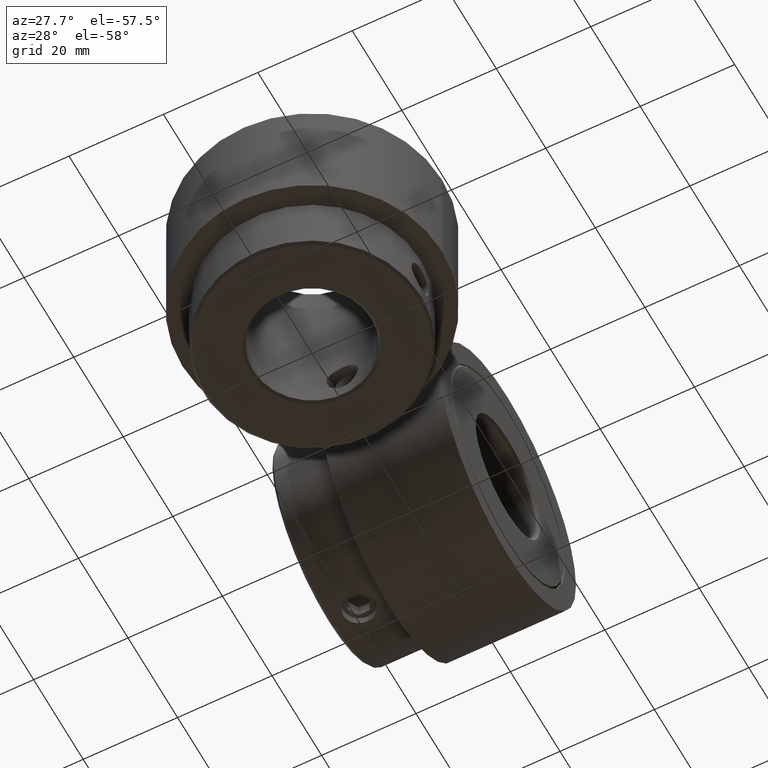
[diagram: clean part render]
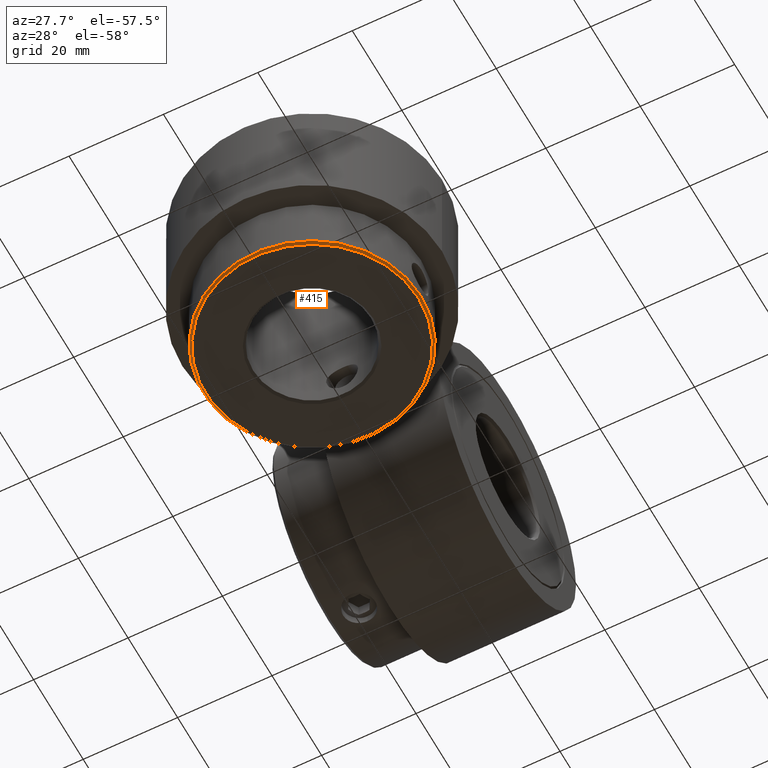
[diagram: same view with one face highlighted and labeled with its STEP entity id]
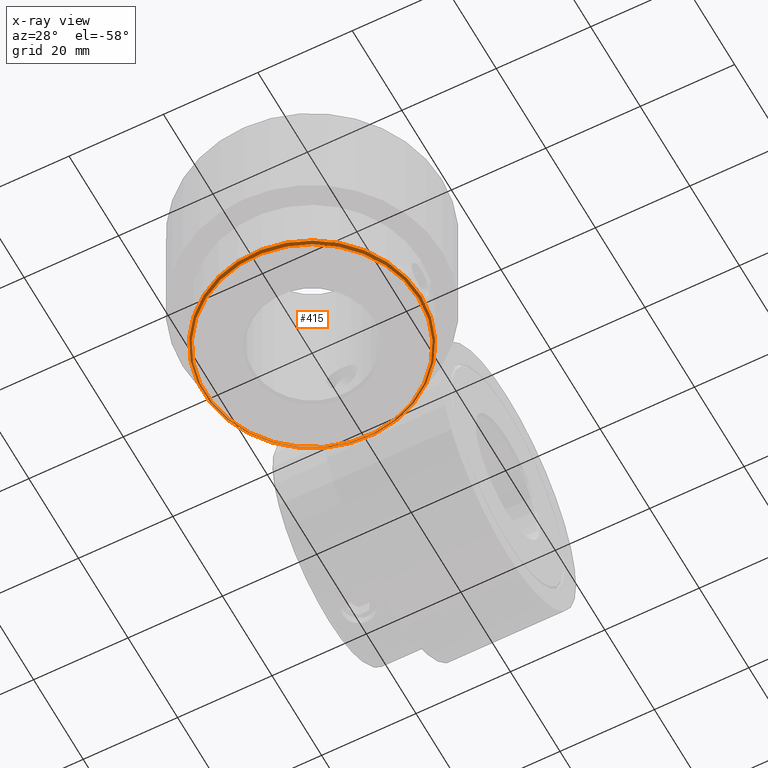
[diagram: x-ray of the same camera — body ghosted, the highlighted face saturated]
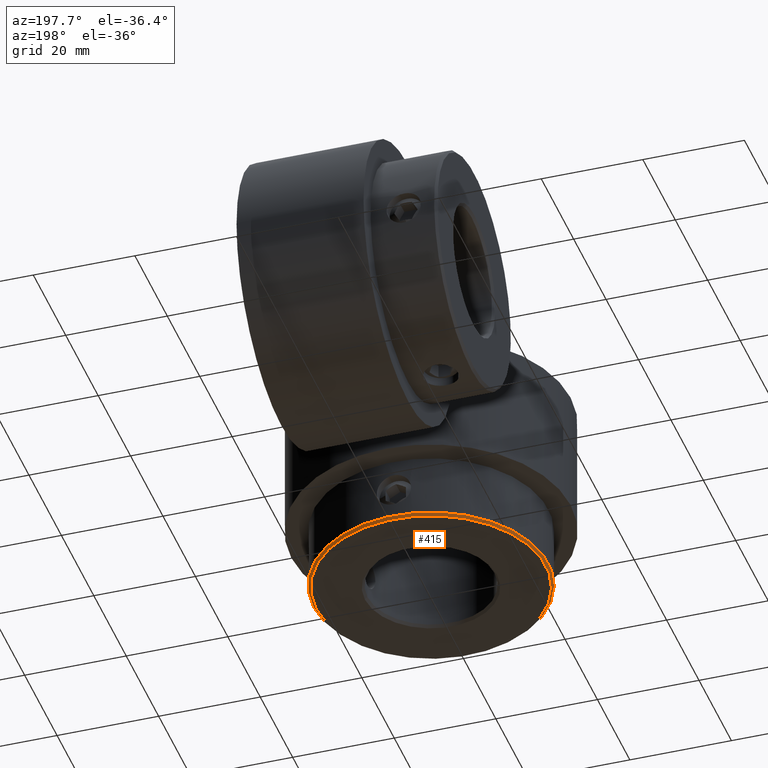
[diagram: same view with one face highlighted and labeled with its STEP entity id]
A machine part, auxiliary view. The second image highlights one B-rep face of the part: STEP entity #415.
The next image is the same camera in x-ray: the body ghosted, the highlighted face saturated — about 0% of this face is hidden behind the body in this view.
A second angle (auxiliary view) of the same face is appended — the face is thin or edge-on in the first view.
In plain terms, the highlighted conical surface has half-angle 45 deg.
Its self-contained STEP definition (entity closure, byte-faithful):
#415 = ADVANCED_FACE( '', ( #494, #495 ), #496, .T. );
#494 = FACE_BOUND( '', #676, .T. );
#495 = FACE_OUTER_BOUND( '', #677, .T. );
#496 = CONICAL_SURFACE( '', #678, 23.1000000000000, 0.785398163397448 );
#676 = EDGE_LOOP( '', ( #860 ) );
#677 = EDGE_LOOP( '', ( #861 ) );
#678 = AXIS2_PLACEMENT_3D( '', #862, #863, #864 );
#860 = ORIENTED_EDGE( '', *, *, #1253, .F. );
#861 = ORIENTED_EDGE( '', *, *, #1249, .F. );
#862 = CARTESIAN_POINT( '', ( 0.000000000000000, 0.000000000000000, -37.5000000000000 ) );
#863 = DIRECTION( '', ( -0.000000000000000, -0.000000000000000, 1.00000000000000 ) );
#864 = DIRECTION( '', ( 1.00000000000000, 0.000000000000000, 0.000000000000000 ) );
#1249 = EDGE_CURVE( '', #1351, #1351, #1352, .T. );
#1253 = EDGE_CURVE( '', #1359, #1359, #1360, .F. );
#1351 = VERTEX_POINT( '', #1531 );
#1352 = CIRCLE( '', #1532, 23.1000000000000 );
#1359 = VERTEX_POINT( '', #1669 );
#1360 = CIRCLE( '', #1670, 22.6000000000000 );
#1531 = CARTESIAN_POINT( '', ( 23.1000000000000, 0.000000000000000, -37.5000000000000 ) );
#1532 = AXIS2_PLACEMENT_3D( '', #2385, #2386, #2387 );
#1669 = CARTESIAN_POINT( '', ( 22.6000000000000, 0.000000000000000, -38.0000000000000 ) );
#1670 = AXIS2_PLACEMENT_3D( '', #2391, #2392, #2393 );
#2385 = CARTESIAN_POINT( '', ( 0.000000000000000, 0.000000000000000, -37.5000000000000 ) );
#2386 = DIRECTION( '', ( 0.000000000000000, -0.000000000000000, 1.00000000000000 ) );
#2387 = DIRECTION( '', ( 1.00000000000000, 0.000000000000000, 0.000000000000000 ) );
#2391 = CARTESIAN_POINT( '', ( 0.000000000000000, 0.000000000000000, -38.0000000000000 ) );
#2392 = DIRECTION( '', ( 0.000000000000000, 0.000000000000000, 1.00000000000000 ) );
#2393 = DIRECTION( '', ( 1.00000000000000, 0.000000000000000, -0.000000000000000 ) );